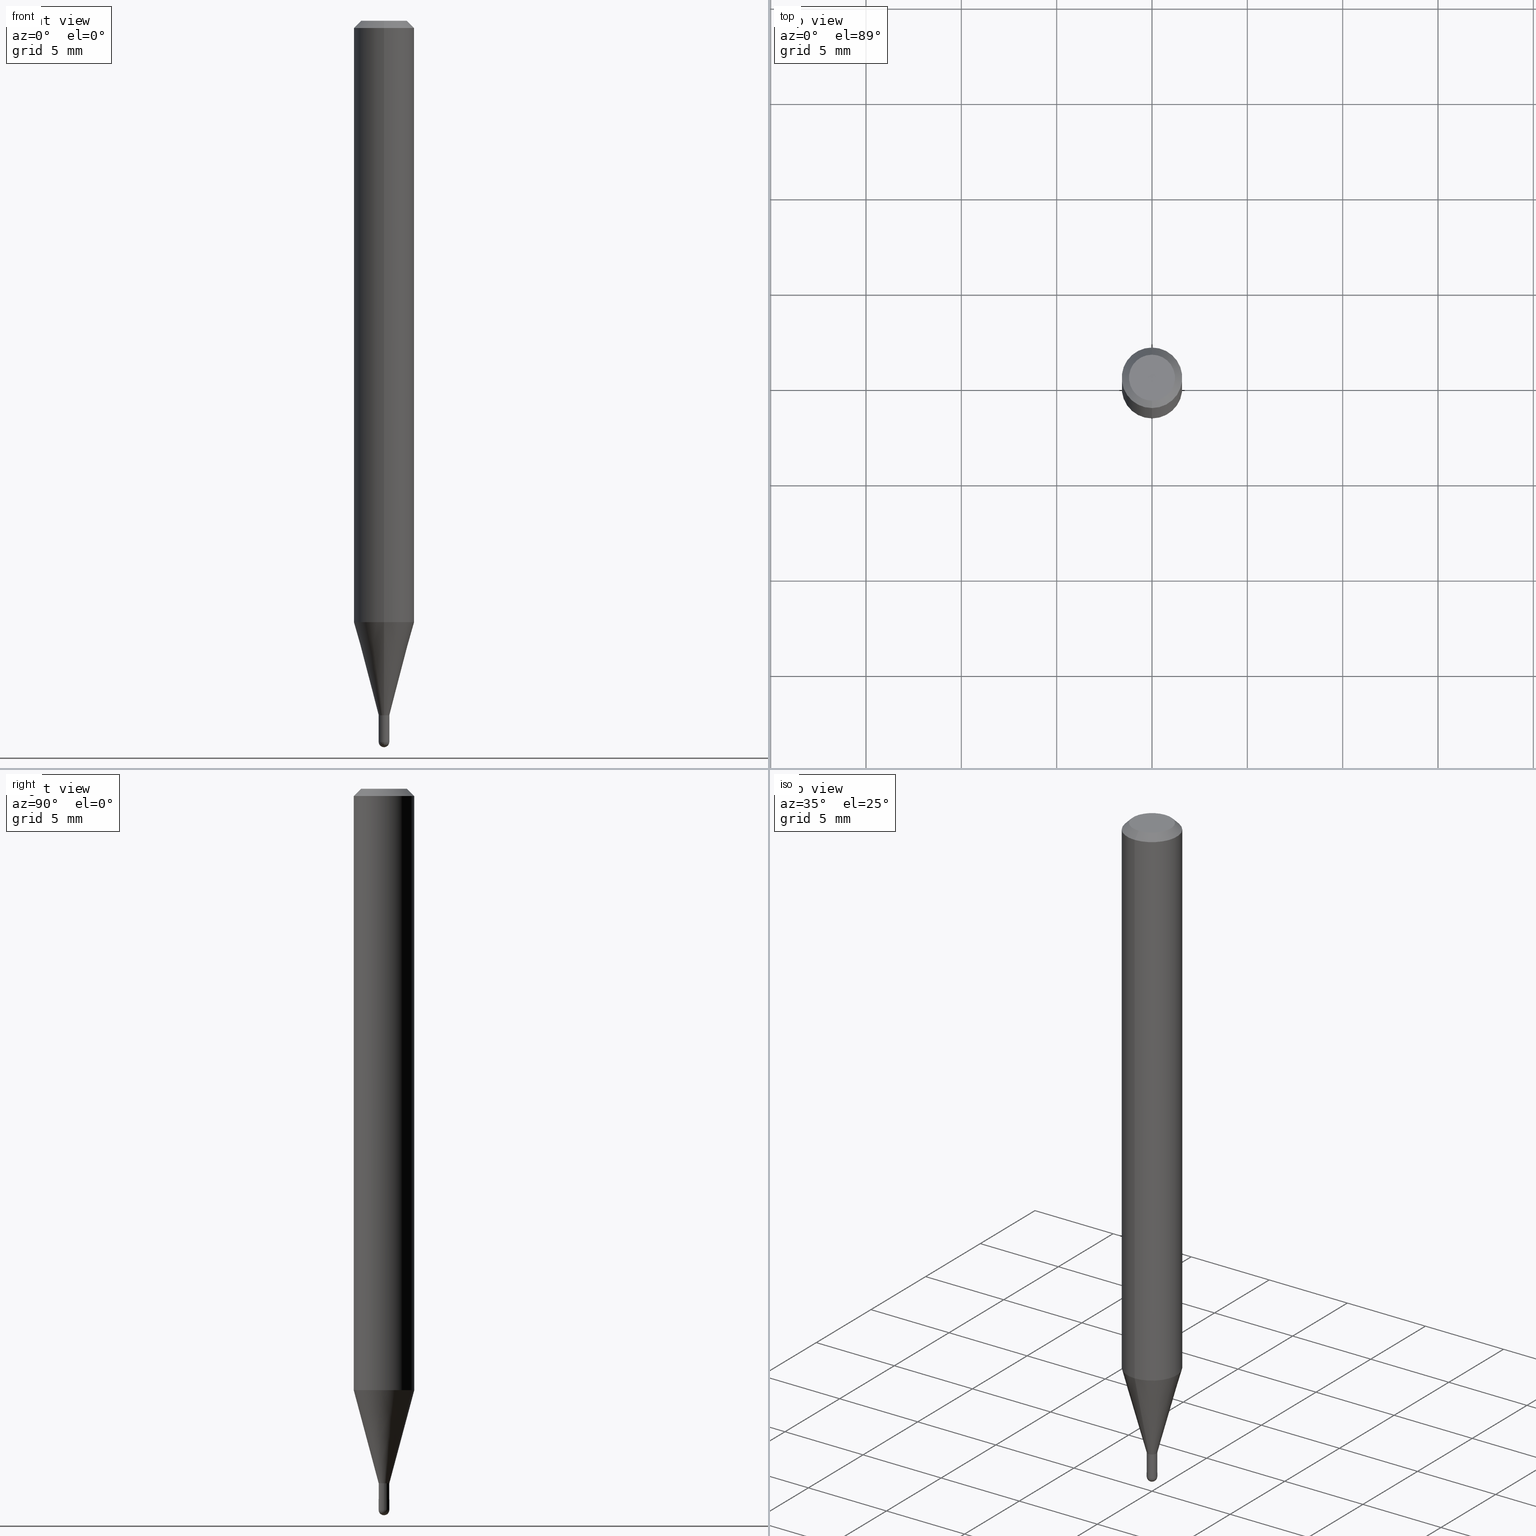
[diagram: canonical four-view strip — front | top / right | iso, engineering-drawing reading convention]
A machine part, canonical four-view strip (front | top / right | iso — engineering-drawing reading convention). The complete STEP part file that produces these views, byte-faithful:
ISO-10303-21;
HEADER;
FILE_DESCRIPTION (( 'STEP AP203' ),
    '1' );
FILE_NAME ('04400.STEP',
    '2024-03-08T19:11:10',
    ( '' ),
    ( '' ),
    'SwSTEP 2.0',
    'SolidWorks 2023',
    '' );
FILE_SCHEMA (( 'CONFIG_CONTROL_DESIGN' ));
ENDSEC;

DATA;
#1 = DIRECTION ( 'NONE',  ( -6.982962677686265922E-15, -1.000000000000000000, 0.000000000000000000 ) ) ;
#2 = ORIENTED_EDGE ( 'NONE', *, *, #118, .T. ) ;
#3 = AXIS2_PLACEMENT_3D ( 'NONE', #479, #172, #8 ) ;
#4 = ADVANCED_FACE ( 'NONE', ( #236 ), #231, .T. ) ;
#5 = AXIS2_PLACEMENT_3D ( 'NONE', #20, #144, #105 ) ;
#6 = LINE ( 'NONE', #406, #341 ) ;
#7 = EDGE_LOOP ( 'NONE', ( #359, #410, #324, #482 ) ) ;
#8 = DIRECTION ( 'NONE',  ( -6.982962677686265133E-15, -1.000000000000000000, 0.000000000000000000 ) ) ;
#9 = ORIENTED_EDGE ( 'NONE', *, *, #334, .F. ) ;
#10 = ORIENTED_EDGE ( 'NONE', *, *, #323, .T. ) ;
#11 = DIRECTION ( 'NONE',  ( -2.445461482890761965E-29, 3.491491826217505762E-15, 1.000000000000000000 ) ) ;
#12 = VERTEX_POINT ( 'NONE', #372 ) ;
#13 = EDGE_CURVE ( 'NONE', #12, #60, #94, .T. ) ;
#14 = ORIENTED_EDGE ( 'NONE', *, *, #27, .T. ) ;
#15 = DIRECTION ( 'NONE',  ( -6.982962677686265922E-15, -1.000000000000000000, 3.491491826217505762E-15 ) ) ;
#16 = DIRECTION ( 'NONE',  ( -2.445461482890761965E-29, 3.491491826217505762E-15, 1.000000000000000000 ) ) ;
#17 = ORIENTED_EDGE ( 'NONE', *, *, #124, .F. ) ;
#18 = DIRECTION ( 'NONE',  ( -6.982962677686265922E-15, -1.000000000000000000, 0.000000000000000000 ) ) ;
#19 = VERTEX_POINT ( 'NONE', #498 ) ;
#20 = CARTESIAN_POINT ( 'NONE',  ( 3.641303052409669428E-29, -5.198815713537445098E-15, -1.489000000000000323 ) ) ;
#21 = DIRECTION ( 'NONE',  ( 2.438088387897960049E-29, -3.491481338843145188E-15, -1.000000000000000000 ) ) ;
#22 = CARTESIAN_POINT ( 'NONE',  ( 7.681258945458397305E-17, 0.01099999999999499121, -1.434000000000000163 ) ) ;
#23 = PERSON_AND_ORGANIZATION_ROLE ( 'creator' ) ;
#24 = APPROVAL ( #26, 'UNSPECIFIED' ) ;
#25 = APPROVAL_PERSON_ORGANIZATION ( #462, #29, #305 ) ;
#26 = APPROVAL_STATUS ( 'not_yet_approved' ) ;
#27 = EDGE_CURVE ( 'NONE', #274, #248, #282, .T. ) ;
#28 = DATE_AND_TIME ( #339, #259 ) ;
#29 = APPROVAL ( #69, 'UNSPECIFIED' ) ;
#30 = APPROVAL_STATUS ( 'not_yet_approved' ) ;
#31 = DIRECTION ( 'NONE',  ( -6.982962677686265922E-15, -1.000000000000000000, 0.000000000000000000 ) ) ;
#32 = AXIS2_PLACEMENT_3D ( 'NONE', #473, #474, #230 ) ;
#33 = ORIENTED_EDGE ( 'NONE', *, *, #167, .T. ) ;
#34 = DIRECTION ( 'NONE',  ( -2.445461482890761965E-29, 3.491491826217505762E-15, 1.000000000000000000 ) ) ;
#35 = AXIS2_PLACEMENT_3D ( 'NONE', #22, #21, #415 ) ;
#36 = DIRECTION ( 'NONE',  ( 1.000000000000000000, -6.982962677686245411E-15, 0.000000000000000000 ) ) ;
#37 = CARTESIAN_POINT ( 'NONE',  ( 3.641303052409669428E-29, -5.198815713537445098E-15, -1.489000000000000323 ) ) ;
#38 = CARTESIAN_POINT ( 'NONE',  ( 3.506791766465352744E-29, -5.006799278795903380E-15, -1.434000000000000163 ) ) ;
#39 = LOCAL_TIME ( 14, 11, 10.00000000000000000, #262 ) ;
#40 = CIRCLE ( 'NONE', #204, 0.06250000000000000000 ) ;
#41 = DIRECTION ( 'NONE',  ( -2.445461482890762245E-29, 3.491491826217505762E-15, 1.000000000000000000 ) ) ;
#42 = CARTESIAN_POINT ( 'NONE',  ( 0.000000000000000000, 0.000000000000000000, 0.000000000000000000 ) ) ;
#43 = DIRECTION ( 'NONE',  ( -6.982962677686265922E-15, -1.000000000000000000, 0.000000000000000000 ) ) ;
#44 = DIRECTION ( 'NONE',  ( -4.851104656540964275E-15, -0.7071067811865500152, -0.7071067811865450192 ) ) ;
#45 = CC_DESIGN_PERSON_AND_ORGANIZATION_ASSIGNMENT ( #376, #23, ( #432 ) ) ;
#46 = DIRECTION ( 'NONE',  ( -6.982962677686265922E-15, -1.000000000000000000, 0.000000000000000000 ) ) ;
#47 = CIRCLE ( 'NONE', #3, 0.01099999999999998201 ) ;
#48 = CIRCLE ( 'NONE', #336, 0.01099999999999999936 ) ;
#49 = DIRECTION ( 'NONE',  ( -6.982962677686265922E-15, -1.000000000000000000, 4.370956789862821150E-15 ) ) ;
#50 = ORIENTED_EDGE ( 'NONE', *, *, #263, .F. ) ;
#51 = EDGE_CURVE ( 'NONE', #165, #355, #445, .T. ) ;
#52 = SPHERICAL_SURFACE ( 'NONE', #213, 0.01099999999999998201 ) ;
#53 = ORIENTED_EDGE ( 'NONE', *, *, #118, .F. ) ;
#54 = LOCAL_TIME ( 14, 11, 10.00000000000000000, #496 ) ;
#55 = LINE ( 'NONE', #444, #183 ) ;
#56 = ORIENTED_EDGE ( 'NONE', *, *, #285, .F. ) ;
#57 = DIRECTION ( 'NONE',  ( -2.445468806185136877E-29, 3.491481338843145188E-15, 1.000000000000000000 ) ) ;
#58 = DATE_TIME_ROLE ( 'classification_date' ) ;
#59 = CC_DESIGN_PERSON_AND_ORGANIZATION_ASSIGNMENT ( #65, #379, ( #240 ) ) ;
#60 = VERTEX_POINT ( 'NONE', #424 ) ;
#61 = PERSON_AND_ORGANIZATION_ROLE ( 'design_supplier' ) ;
#62 = AXIS2_PLACEMENT_3D ( 'NONE', #467, #352, #389 ) ;
#63 = DESIGN_CONTEXT ( 'detailed design', #233, 'design' ) ;
#64 = AXIS2_PLACEMENT_3D ( 'NONE', #466, #510, #31 ) ;
#65 = PERSON_AND_ORGANIZATION ( #481, #177 ) ;
#66 = CARTESIAN_POINT ( 'NONE',  ( 0.000000000000000000, 0.000000000000000000, 0.000000000000000000 ) ) ;
#67 = CC_DESIGN_PERSON_AND_ORGANIZATION_ASSIGNMENT ( #422, #113, ( #453 ) ) ;
#68 = ORIENTED_EDGE ( 'NONE', *, *, #321, .F. ) ;
#69 = APPROVAL_STATUS ( 'not_yet_approved' ) ;
#70 = CARTESIAN_POINT ( 'NONE',  ( -7.681258945451523121E-17, -0.01100000000000520353, -1.434000000000000163 ) ) ;
#71 = CONICAL_SURFACE ( 'NONE', #427, 0.01049999999999999892, 0.7853981633969275844 ) ;
#72 = LOCAL_TIME ( 14, 11, 10.00000000000000000, #298 ) ;
#73 = AXIS2_PLACEMENT_3D ( 'NONE', #471, #390, #155 ) ;
#74 = ORIENTED_EDGE ( 'NONE', *, *, #456, .T. ) ;
#75 = DIRECTION ( 'NONE',  ( -2.445461482890762245E-29, 3.491491826217505762E-15, 1.000000000000000000 ) ) ;
#76 = DIRECTION ( 'NONE',  ( -6.982962677686265922E-15, -1.000000000000000000, 3.491491826217505762E-15 ) ) ;
#77 = CARTESIAN_POINT ( 'NONE',  ( -4.287811248607203282E-16, -0.06250000000000005551, -0.01499999999999984852 ) ) ;
#78 = CYLINDRICAL_SURFACE ( 'NONE', #83, 0.06250000000000000000 ) ;
#79 = FACE_OUTER_BOUND ( 'NONE', #365, .T. ) ;
#80 = DIRECTION ( 'NONE',  ( 2.445461482890762245E-29, -3.491491826217505762E-15, -1.000000000000000000 ) ) ;
#81 = DIRECTION ( 'NONE',  ( -2.445461482890762245E-29, 3.491491826217505762E-15, 1.000000000000000000 ) ) ;
#82 = VECTOR ( 'NONE', #166, 39.37007874015748143 ) ;
#83 = AXIS2_PLACEMENT_3D ( 'NONE', #188, #340, #463 ) ;
#84 = SPHERICAL_SURFACE ( 'NONE', #32, 0.01099999999999998201 ) ;
#85 = EDGE_CURVE ( 'NONE', #91, #348, #420, .T. ) ;
#86 = FACE_OUTER_BOUND ( 'NONE', #96, .T. ) ;
#87 = ADVANCED_FACE ( 'NONE', ( #302 ), #109, .F. ) ;
#88 = EDGE_LOOP ( 'NONE', ( #478, #244, #504, #288 ) ) ;
#89 = FACE_OUTER_BOUND ( 'NONE', #484, .T. ) ;
#90 = ORIENTED_EDGE ( 'NONE', *, *, #407, .T. ) ;
#91 = VERTEX_POINT ( 'NONE', #70 ) ;
#92 = CC_DESIGN_APPROVAL ( #29, ( #240 ) ) ;
#93 = EDGE_CURVE ( 'NONE', #248, #274, #297, .T. ) ;
#94 = CIRCLE ( 'NONE', #5, 0.01099999999999999936 ) ;
#95 = CARTESIAN_POINT ( 'NONE',  ( 0.000000000000000000, 0.000000000000000000, 0.000000000000000000 ) ) ;
#96 = EDGE_LOOP ( 'NONE', ( #470, #116, #90, #53 ) ) ;
#97 = FACE_OUTER_BOUND ( 'NONE', #143, .T. ) ;
#98 = DIRECTION ( 'NONE',  ( -4.937700262161976356E-15, -0.7071067811861768693, 0.7071067811869181652 ) ) ;
#99 = ORIENTED_EDGE ( 'NONE', *, *, #403, .T. ) ;
#100 = ORIENTED_EDGE ( 'NONE', *, *, #85, .F. ) ;
#101 = DIRECTION ( 'NONE',  ( -2.445468806185136597E-29, 3.491481338843145583E-15, 1.000000000000000000 ) ) ;
#102 = DIRECTION ( 'NONE',  ( 6.982962677686265922E-15, 1.000000000000000000, -3.483106191921935554E-15 ) ) ;
#103 = AXIS2_PLACEMENT_3D ( 'NONE', #397, #161, #46 ) ;
#104 = ADVANCED_FACE ( 'NONE', ( #374 ), #329, .F. ) ;
#105 = DIRECTION ( 'NONE',  ( 1.000000000000000000, -6.982962677686245411E-15, 0.000000000000000000 ) ) ;
#106 = EDGE_CURVE ( 'NONE', #460, #346, #367, .T. ) ;
#107 = VECTOR ( 'NONE', #308, 39.37007874015748143 ) ;
#108 = DIRECTION ( 'NONE',  ( 0.000000000000000000, 0.000000000000000000, 1.000000000000000000 ) ) ;
#109 = CYLINDRICAL_SURFACE ( 'NONE', #268, 0.01099999999999992477 ) ;
#110 = AXIS2_PLACEMENT_3D ( 'NONE', #296, #454, #417 ) ;
#111 = CARTESIAN_POINT ( 'NONE',  ( -4.364351673553916201E-16, -0.06250000000000000000, 2.182182391385941101E-16 ) ) ;
#112 = DIRECTION ( 'NONE',  ( 1.000000000000000000, -6.982962677686265922E-15, 4.876176775795936353E-29 ) ) ;
#113 = PERSON_AND_ORGANIZATION_ROLE ( 'design_owner' ) ;
#114 = DIRECTION ( 'NONE',  ( -6.982962677686265922E-15, -1.000000000000000000, 3.491491826217505762E-15 ) ) ;
#115 = DATE_AND_TIME ( #375, #72 ) ;
#116 = ORIENTED_EDGE ( 'NONE', *, *, #263, .T. ) ;
#117 = DIRECTION ( 'NONE',  ( -6.982962677686265922E-15, -1.000000000000000000, 0.000000000000000000 ) ) ;
#118 = EDGE_CURVE ( 'NONE', #499, #222, #185, .T. ) ;
#119 = CARTESIAN_POINT ( 'NONE',  ( 3.506791766465353865E-29, -5.006799278795904169E-15, -1.434000000000000385 ) ) ;
#120 = FACE_OUTER_BOUND ( 'NONE', #7, .T. ) ;
#121 = LINE ( 'NONE', #111, #328 ) ;
#122 = DIRECTION ( 'NONE',  ( 6.982962677686265922E-15, 1.000000000000000000, -3.483106191921935554E-15 ) ) ;
#123 = ORIENTED_EDGE ( 'NONE', *, *, #124, .T. ) ;
#124 = EDGE_CURVE ( 'NONE', #429, #200, #179, .T. ) ;
#125 = DIRECTION ( 'NONE',  ( -6.982962677686265922E-15, -1.000000000000000000, 0.000000000000000000 ) ) ;
#126 = AXIS2_PLACEMENT_3D ( 'NONE', #119, #434, #117 ) ;
#127 = EDGE_LOOP ( 'NONE', ( #9, #99, #377, #220 ) ) ;
#128 = CARTESIAN_POINT ( 'NONE',  ( 1.601770812881372317E-45, -2.286917925216366942E-31, -6.549973590211409357E-17 ) ) ;
#129 = DIRECTION ( 'NONE',  ( -2.445461482890762245E-29, 3.491491826217505762E-15, 1.000000000000000000 ) ) ;
#130 = ORIENTED_EDGE ( 'NONE', *, *, #93, .T. ) ;
#131 = DIRECTION ( 'NONE',  ( -6.982962677686265922E-15, -1.000000000000000000, 3.491491826217505762E-15 ) ) ;
#132 = ADVANCED_FACE ( 'NONE', ( #97 ), #249, .T. ) ;
#133 = EDGE_LOOP ( 'NONE', ( #123, #489, #371, #400 ) ) ;
#134 = ORIENTED_EDGE ( 'NONE', *, *, #276, .T. ) ;
#135 = FACE_OUTER_BOUND ( 'NONE', #401, .T. ) ;
#136 = ORIENTED_EDGE ( 'NONE', *, *, #106, .T. ) ;
#137 = AXIS2_PLACEMENT_3D ( 'NONE', #128, #205, #290 ) ;
#138 = AXIS2_PLACEMENT_3D ( 'NONE', #360, #277, #206 ) ;
#139 = AXIS2_PLACEMENT_3D ( 'NONE', #344, #81, #43 ) ;
#140 = CARTESIAN_POINT ( 'NONE',  ( 4.440892098500625669E-16, 0.06250000000000000000, -2.182182391385941101E-16 ) ) ;
#141 = CARTESIAN_POINT ( 'NONE',  ( 3.640362369491571484E-29, -5.200162825016506087E-15, -1.489000000000000101 ) ) ;
#142 = EDGE_CURVE ( 'NONE', #60, #278, #242, .T. ) ;
#143 = EDGE_LOOP ( 'NONE', ( #154, #136, #217, #191, #169 ) ) ;
#144 = DIRECTION ( 'NONE',  ( -2.445468806185136597E-29, 3.491481338843145583E-15, 1.000000000000000000 ) ) ;
#145 = VECTOR ( 'NONE', #44, 39.37007874015748143 ) ;
#146 = CALENDAR_DATE ( 2024, 8, 3 ) ;
#147 = DIRECTION ( 'NONE',  ( 1.000000000000000000, 0.000000000000000000, 0.000000000000000000 ) ) ;
#148 = EDGE_CURVE ( 'NONE', #91, #222, #353, .T. ) ;
#149 = EDGE_LOOP ( 'NONE', ( #14, #130 ) ) ;
#150 = APPROVAL_ROLE ( '' ) ;
#151 = CARTESIAN_POINT ( 'NONE',  ( 0.000000000000000000, 0.000000000000000000, 0.000000000000000000 ) ) ;
#152 = APPLICATION_PROTOCOL_DEFINITION ( 'international standard', 'config_control_design', 1994, #233 ) ;
#153 = CALENDAR_DATE ( 2024, 8, 3 ) ;
#154 = ORIENTED_EDGE ( 'NONE', *, *, #394, .T. ) ;
#155 = DIRECTION ( 'NONE',  ( -6.982962677686265922E-15, -1.000000000000000000, 4.370956789862821150E-15 ) ) ;
#156 = ADVANCED_FACE ( 'NONE', ( #79 ), #351, .T. ) ;
#157 = CARTESIAN_POINT ( 'NONE',  ( 3.840629472727447874E-16, 0.04749999999999999362, -2.313455976474456035E-16 ) ) ;
#158 = DIMENSIONAL_EXPONENTS ( 1.000000000000000000, 0.000000000000000000, 0.000000000000000000, 0.000000000000000000, 0.000000000000000000, 0.000000000000000000, 0.000000000000000000 ) ;
#159 = DIRECTION ( 'NONE',  ( 7.105427357601001070E-15, 1.000000000000000000, 0.000000000000000000 ) ) ;
#160 = CC_DESIGN_APPROVAL ( #464, ( #432 ) ) ;
#161 = DIRECTION ( 'NONE',  ( -2.445461482890762245E-29, 3.491491826217505762E-15, 1.000000000000000000 ) ) ;
#162 = CC_DESIGN_DATE_AND_TIME_ASSIGNMENT ( #307, #58, ( #443 ) ) ;
#163 = DIRECTION ( 'NONE',  ( -2.445461482890762245E-29, 3.491491826217505762E-15, 1.000000000000000000 ) ) ;
#164 = CARTESIAN_POINT ( 'NONE',  ( 7.815970093364746375E-17, 0.01099999999999519071, -1.434000000000000163 ) ) ;
#165 = VERTEX_POINT ( 'NONE', #414 ) ;
#166 = DIRECTION ( 'NONE',  ( -2.445461482890761965E-29, 3.491491826217505762E-15, 1.000000000000000000 ) ) ;
#167 = EDGE_CURVE ( 'NONE', #239, #19, #40, .T. ) ;
#168 = VERTEX_POINT ( 'NONE', #256 ) ;
#169 = ORIENTED_EDGE ( 'NONE', *, *, #440, .T. ) ;
#170 = LENGTH_MEASURE_WITH_UNIT ( LENGTH_MEASURE( 0.02539999999999999897 ), #364 );
#171 = AXIS2_PLACEMENT_3D ( 'NONE', #215, #446, #245 ) ;
#172 = DIRECTION ( 'NONE',  ( -1.000000000000000000, 6.982962677686265922E-15, -4.883557194083112340E-29 ) ) ;
#173 = EDGE_CURVE ( 'NONE', #460, #12, #48, .T. ) ;
#174 = FACE_OUTER_BOUND ( 'NONE', #226, .T. ) ;
#175 = DIRECTION ( 'NONE',  ( 2.445461482890762245E-29, -3.491491826217505762E-15, -1.000000000000000000 ) ) ;
#176 = DATE_AND_TIME ( #383, #54 ) ;
#177 = ORGANIZATION ( 'UNSPECIFIED', 'UNSPECIFIED', '' ) ;
#178 = CARTESIAN_POINT ( 'NONE',  ( 0.000000000000000000, 0.000000000000000000, 0.000000000000000000 ) ) ;
#179 = CIRCLE ( 'NONE', #110, 0.01049999999999999892 ) ;
#180 = ADVANCED_FACE ( 'NONE', ( #187 ), #311, .T. ) ;
#181 = UNCERTAINTY_MEASURE_WITH_UNIT (LENGTH_MEASURE( 1.000000000000000082E-05 ), #325, 'distance_accuracy_value', 'NONE');
#182 = PERSON_AND_ORGANIZATION ( #481, #177 ) ;
#183 = VECTOR ( 'NONE', #289, 39.37007874015748143 ) ;
#184 = COORDINATED_UNIVERSAL_TIME_OFFSET ( 5, 0, .BEHIND. ) ;
#185 = CIRCLE ( 'NONE', #413, 0.01099999999999965068 ) ;
#186 = ADVANCED_FACE ( 'NONE', ( #120 ), #78, .T. ) ;
#187 = FACE_OUTER_BOUND ( 'NONE', #284, .T. ) ;
#188 = CARTESIAN_POINT ( 'NONE',  ( 0.000000000000000000, 0.000000000000000000, 0.000000000000000000 ) ) ;
#189 = ORIENTED_EDGE ( 'NONE', *, *, #106, .F. ) ;
#190 = FACE_OUTER_BOUND ( 'NONE', #216, .T. ) ;
#191 = ORIENTED_EDGE ( 'NONE', *, *, #142, .F. ) ;
#192 = VECTOR ( 'NONE', #234, 39.37007874015748143 ) ;
#193 = LINE ( 'NONE', #164, #283 ) ;
#194 = CIRCLE ( 'NONE', #411, 0.06250000000000000000 ) ;
#195 = EDGE_CURVE ( 'NONE', #165, #239, #121, .T. ) ;
#196 = CARTESIAN_POINT ( 'NONE',  ( 4.440892098500927901E-16, 0.06249999999999566319, -1.241799383410210122 ) ) ;
#197 = DIRECTION ( 'NONE',  ( -2.445468806185136877E-29, 3.491481338843145188E-15, 1.000000000000000000 ) ) ;
#198 = CARTESIAN_POINT ( 'NONE',  ( 3.506791766465353865E-29, -5.006799278795904169E-15, -1.434000000000000385 ) ) ;
#199 = ADVANCED_FACE ( 'NONE', ( #313 ), #271, .F. ) ;
#200 = VERTEX_POINT ( 'NONE', #354 ) ;
#201 = DIRECTION ( 'NONE',  ( -2.445461482890762245E-29, 3.491491826217505762E-15, 1.000000000000000000 ) ) ;
#202 = ORIENTED_EDGE ( 'NONE', *, *, #418, .T. ) ;
#203 = VECTOR ( 'NONE', #483, 39.37007874015748143 ) ;
#204 = AXIS2_PLACEMENT_3D ( 'NONE', #408, #41, #436 ) ;
#205 = DIRECTION ( 'NONE',  ( -2.445461482890762245E-29, 3.491491826217505762E-15, 1.000000000000000000 ) ) ;
#206 = DIRECTION ( 'NONE',  ( -6.982962677686265922E-15, -1.000000000000000000, 3.483106191921935554E-15 ) ) ;
#207 = ORIENTED_EDGE ( 'NONE', *, *, #321, .T. ) ;
#208 = ADVANCED_FACE ( 'NONE', ( #431 ), #421, .T. ) ;
#209 = ORIENTED_EDGE ( 'NONE', *, *, #27, .F. ) ;
#210 = CARTESIAN_POINT ( 'NONE',  ( 3.506791766465352744E-29, -5.006799278795903380E-15, -1.434000000000000163 ) ) ;
#211 = ORIENTED_EDGE ( 'NONE', *, *, #285, .T. ) ;
#212 = CC_DESIGN_PERSON_AND_ORGANIZATION_ASSIGNMENT ( #419, #61, ( #240 ) ) ;
#213 = AXIS2_PLACEMENT_3D ( 'NONE', #141, #331, #250 ) ;
#214 = CARTESIAN_POINT ( 'NONE',  ( -0.01099999999999999936, 7.815970093361101591E-17, -5.410828599280396199E-31 ) ) ;
#215 = CARTESIAN_POINT ( 'NONE',  ( 3.641303052409669428E-29, -5.198815713537445098E-15, -1.489000000000000323 ) ) ;
#216 = EDGE_LOOP ( 'NONE', ( #487, #211, #33, #362 ) ) ;
#217 = ORIENTED_EDGE ( 'NONE', *, *, #323, .F. ) ;
#218 = AXIS2_PLACEMENT_3D ( 'NONE', #38, #129, #125 ) ;
#219 = PERSON_AND_ORGANIZATION ( #481, #177 ) ;
#220 = ORIENTED_EDGE ( 'NONE', *, *, #394, .F. ) ;
#221 = ORIENTED_EDGE ( 'NONE', *, *, #173, .T. ) ;
#222 = VERTEX_POINT ( 'NONE', #310 ) ;
#223 = AXIS2_PLACEMENT_3D ( 'NONE', #210, #238, #493 ) ;
#224 = CARTESIAN_POINT ( 'NONE',  ( 3.506802268069485929E-29, -5.006784239901070239E-15, -1.434000000000000163 ) ) ;
#225 = ORIENTED_EDGE ( 'NONE', *, *, #416, .F. ) ;
#226 = EDGE_LOOP ( 'NONE', ( #189, #221, #442, #326, #366 ) ) ;
#227 = ADVANCED_FACE ( 'NONE', ( #430 ), #314, .F. ) ;
#228 = LINE ( 'NONE', #317, #192 ) ;
#229 = CIRCLE ( 'NONE', #138, 0.06250000000000000000 ) ;
#230 = DIRECTION ( 'NONE',  ( -6.982962677686265922E-15, -1.000000000000000000, 0.000000000000000000 ) ) ;
#231 = CONICAL_SURFACE ( 'NONE', #358, 0.06250000000000000000, 0.7853981633974483900 ) ;
#232 = CARTESIAN_POINT ( 'NONE',  ( 0.01099999999999999936, -5.083596829355619552E-15, -1.434000000000000163 ) ) ;
#233 = APPLICATION_CONTEXT ( 'configuration controlled 3d designs of mechanical parts and assemblies' ) ;
#234 = DIRECTION ( 'NONE',  ( -1.807323732225379838E-15, -0.2588190451025252914, 0.9659258262890670910 ) ) ;
#235 = ADVANCED_FACE ( 'NONE', ( #312 ), #84, .T. ) ;
#236 = FACE_OUTER_BOUND ( 'NONE', #251, .T. ) ;
#237 = ORIENTED_EDGE ( 'NONE', *, *, #85, .T. ) ;
#238 = DIRECTION ( 'NONE',  ( -2.445461482890762245E-29, 3.491491826217505762E-15, 1.000000000000000000 ) ) ;
#239 = VERTEX_POINT ( 'NONE', #437 ) ;
#240 = PRODUCT_DEFINITION_FORMATION_WITH_SPECIFIED_SOURCE ( 'ANY', '', #453, .NOT_KNOWN. ) ;
#241 = ORIENTED_EDGE ( 'NONE', *, *, #254, .F. ) ;
#242 = LINE ( 'NONE', #319, #476 ) ;
#243 = CARTESIAN_POINT ( 'NONE',  ( 3.506791766465352744E-29, -5.006799278795903380E-15, -1.434000000000000163 ) ) ;
#244 = ORIENTED_EDGE ( 'NONE', *, *, #334, .T. ) ;
#245 = DIRECTION ( 'NONE',  ( 1.000000000000000000, -6.982962677686245411E-15, 0.000000000000000000 ) ) ;
#246 = CC_DESIGN_PERSON_AND_ORGANIZATION_ASSIGNMENT ( #182, #501, ( #443 ) ) ;
#247 = EDGE_LOOP ( 'NONE', ( #10, #134 ) ) ;
#248 = VERTEX_POINT ( 'NONE', #267 ) ;
#249 = CYLINDRICAL_SURFACE ( 'NONE', #306, 0.01099999999999999936 ) ;
#250 = DIRECTION ( 'NONE',  ( -6.982962677686265922E-15, -1.000000000000000000, 0.000000000000000000 ) ) ;
#251 = EDGE_LOOP ( 'NONE', ( #56, #209, #74, #258 ) ) ;
#252 = CC_DESIGN_APPROVAL ( #24, ( #443 ) ) ;
#253 = PLANE ( 'NONE',  #335 ) ;
#254 = EDGE_CURVE ( 'NONE', #348, #91, #497, .T. ) ;
#255 = SECURITY_CLASSIFICATION_LEVEL ( 'unclassified' ) ;
#256 = CARTESIAN_POINT ( 'NONE',  ( 7.815970093364734049E-17, 0.01099999999999479172, -1.489000000000000323 ) ) ;
#257 = APPROVAL_DATE_TIME ( #342, #29 ) ;
#258 = ORIENTED_EDGE ( 'NONE', *, *, #381, .T. ) ;
#259 = LOCAL_TIME ( 14, 11, 10.00000000000000000, #457 ) ;
#260 = MECHANICAL_CONTEXT ( 'NONE', #293, 'mechanical' ) ;
#261 = AXIS2_PLACEMENT_3D ( 'NONE', #385, #386, #512 ) ;
#262 = COORDINATED_UNIVERSAL_TIME_OFFSET ( 5, 0, .BEHIND. ) ;
#263 = EDGE_CURVE ( 'NONE', #200, #429, #509, .T. ) ;
#264 = APPLICATION_PROTOCOL_DEFINITION ( 'international standard', 'config_control_design', 1994, #293 ) ;
#265 = DIRECTION ( 'NONE',  ( -2.445468806185136597E-29, 3.491481338843145583E-15, 1.000000000000000000 ) ) ;
#266 = AXIS2_PLACEMENT_3D ( 'NONE', #507, #275, #159 ) ;
#267 = CARTESIAN_POINT ( 'NONE',  ( -3.773273898774340269E-16, -0.04749999999999999362, 1.003461258432174163E-16 ) ) ;
#268 = AXIS2_PLACEMENT_3D ( 'NONE', #66, #384, #114 ) ;
#269 = CARTESIAN_POINT ( 'NONE',  ( 3.668192224336159377E-31, -5.237237739326281594E-17, -0.01500000000000006710 ) ) ;
#270 = DIRECTION ( 'NONE',  ( 1.000000000000000000, -6.982962677686245411E-15, 0.000000000000000000 ) ) ;
#271 = PLANE ( 'NONE',  #261 ) ;
#272 = AXIS2_PLACEMENT_3D ( 'NONE', #95, #330, #441 ) ;
#273 = DIRECTION ( 'NONE',  ( -2.445461482890762245E-29, 3.491491826217505762E-15, 1.000000000000000000 ) ) ;
#274 = VERTEX_POINT ( 'NONE', #157 ) ;
#275 = DIRECTION ( 'NONE',  ( 1.000000000000000000, -7.105427357601001070E-15, 4.926315508542082329E-29 ) ) ;
#276 = EDGE_CURVE ( 'NONE', #346, #278, #387, .T. ) ;
#277 = DIRECTION ( 'NONE',  ( -2.445461482890762245E-29, 3.491491826217505762E-15, 1.000000000000000000 ) ) ;
#278 = VERTEX_POINT ( 'NONE', #232 ) ;
#279 = ORIENTED_EDGE ( 'NONE', *, *, #472, .T. ) ;
#280 = VERTEX_POINT ( 'NONE', #393 ) ;
#281 = CARTESIAN_POINT ( 'NONE',  ( -7.332110811567072031E-17, -0.01050000000000500706, -1.434000000000000385 ) ) ;
#282 = CIRCLE ( 'NONE', #469, 0.04749999999999999362 ) ;
#283 = VECTOR ( 'NONE', #349, 39.37007874015748854 ) ;
#284 = EDGE_LOOP ( 'NONE', ( #237, #396, #485, #68 ) ) ;
#285 = EDGE_CURVE ( 'NONE', #248, #239, #395, .T. ) ;
#286 = ORIENTED_EDGE ( 'NONE', *, *, #254, .T. ) ;
#287 = CARTESIAN_POINT ( 'NONE',  ( 3.641303052409669428E-29, -5.198815713537445098E-15, -1.489000000000000323 ) ) ;
#288 = ORIENTED_EDGE ( 'NONE', *, *, #13, .F. ) ;
#289 = DIRECTION ( 'NONE',  ( -2.445461482890761965E-29, 3.491491826217505762E-15, 1.000000000000000000 ) ) ;
#290 = DIRECTION ( 'NONE',  ( -6.982962677686266711E-15, -1.000000000000000000, 3.491491826217505762E-15 ) ) ;
#291 = DIRECTION ( 'NONE',  ( 1.000000000000000000, -6.982962677686245411E-15, 0.000000000000000000 ) ) ;
#292 = ORIENTED_EDGE ( 'NONE', *, *, #472, .F. ) ;
#293 = APPLICATION_CONTEXT ( 'configuration controlled 3d designs of mechanical parts and assemblies' ) ;
#294 = AXIS2_PLACEMENT_3D ( 'NONE', #287, #101, #291 ) ;
#295 = APPROVAL_PERSON_ORGANIZATION ( #219, #24, #150 ) ;
#296 = CARTESIAN_POINT ( 'NONE',  ( 3.506791766465353865E-29, -5.006799278795904169E-15, -1.434000000000000385 ) ) ;
#297 = CIRCLE ( 'NONE', #137, 0.04749999999999999362 ) ;
#298 = COORDINATED_UNIVERSAL_TIME_OFFSET ( 5, 0, .BEHIND. ) ;
#299 = ADVANCED_BREP_SHAPE_REPRESENTATION ( '04400', ( #380, #382, #468 ), #398 ) ;
#300 = ADVANCED_FACE ( 'NONE', ( #190 ), #475, .T. ) ;
#301 = DATE_TIME_ROLE ( 'creation_date' ) ;
#302 = FACE_OUTER_BOUND ( 'NONE', #465, .T. ) ;
#303 = AXIS2_PLACEMENT_3D ( 'NONE', #477, #347, #270 ) ;
#304 = ADVANCED_FACE ( 'NONE', ( #86 ), #71, .T. ) ;
#305 = APPROVAL_ROLE ( '' ) ;
#306 = AXIS2_PLACEMENT_3D ( 'NONE', #151, #458, #112 ) ;
#307 = DATE_AND_TIME ( #153, #39 ) ;
#308 = DIRECTION ( 'NONE',  ( 5.024295867785445738E-15, 0.7071067811861817543, 0.7071067811869132802 ) ) ;
#309 = LOCAL_TIME ( 14, 11, 10.00000000000000000, #184 ) ;
#310 = CARTESIAN_POINT ( 'NONE',  ( -7.681258945451169366E-17, -0.01100000000000469179, -1.433500000000000218 ) ) ;
#311 = CONICAL_SURFACE ( 'NONE', #139, 0.01100000000000019712, 0.2617993877991576235 ) ;
#312 = FACE_OUTER_BOUND ( 'NONE', #127, .T. ) ;
#313 = FACE_OUTER_BOUND ( 'NONE', #149, .T. ) ;
#314 = CYLINDRICAL_SURFACE ( 'NONE', #502, 0.01099999999999992477 ) ;
#315 = EDGE_CURVE ( 'NONE', #348, #355, #193, .T. ) ;
#316 = CIRCLE ( 'NONE', #303, 0.01099999999999999936 ) ;
#317 = CARTESIAN_POINT ( 'NONE',  ( -7.681258945451523121E-17, -0.01100000000000520353, -1.434000000000000163 ) ) ;
#318 = VECTOR ( 'NONE', #57, 39.37007874015748143 ) ;
#319 = CARTESIAN_POINT ( 'NONE',  ( 0.01099999999999999936, -7.681258945454891804E-17, 5.363794453375529652E-31 ) ) ;
#320 = LINE ( 'NONE', #140, #82 ) ;
#321 = EDGE_CURVE ( 'NONE', #91, #165, #228, .T. ) ;
#322 = CARTESIAN_POINT ( 'NONE',  ( 4.364351673553919652E-16, 0.06249999999999995143, -0.01500000000000028394 ) ) ;
#323 = EDGE_CURVE ( 'NONE', #278, #346, #316, .T. ) ;
#324 = ORIENTED_EDGE ( 'NONE', *, *, #195, .T. ) ;
#325 =( CONVERSION_BASED_UNIT ( 'INCH', #170 ) LENGTH_UNIT ( ) NAMED_UNIT ( #158 ) );
#326 = ORIENTED_EDGE ( 'NONE', *, *, #142, .T. ) ;
#327 = CIRCLE ( 'NONE', #266, 0.01099999999999998201 ) ;
#328 = VECTOR ( 'NONE', #34, 39.37007874015748143 ) ;
#329 = PLANE ( 'NONE',  #35 ) ;
#330 = DIRECTION ( 'NONE',  ( -2.445468806185136597E-29, 3.491481338843145583E-15, 1.000000000000000000 ) ) ;
#331 = DIRECTION ( 'NONE',  ( 1.000000000000000000, -6.982962677686265922E-15, 4.883557194083112901E-29 ) ) ;
#332 = CARTESIAN_POINT ( 'NONE',  ( 3.505569035723908321E-29, -5.005053532882795644E-15, -1.433500000000000218 ) ) ;
#333 = PERSON_AND_ORGANIZATION ( #481, #177 ) ;
#334 = EDGE_CURVE ( 'NONE', #280, #168, #327, .T. ) ;
#335 = AXIS2_PLACEMENT_3D ( 'NONE', #243, #16, #131 ) ;
#336 = AXIS2_PLACEMENT_3D ( 'NONE', #37, #265, #425 ) ;
#337 = APPROVAL_DATE_TIME ( #176, #464 ) ;
#338 = CC_DESIGN_DATE_AND_TIME_ASSIGNMENT ( #28, #301, ( #432 ) ) ;
#339 = CALENDAR_DATE ( 2024, 8, 3 ) ;
#340 = DIRECTION ( 'NONE',  ( -2.445461482890762245E-29, 3.491491826217505762E-15, 1.000000000000000000 ) ) ;
#341 = VECTOR ( 'NONE', #98, 39.37007874015748143 ) ;
#342 = DATE_AND_TIME ( #146, #309 ) ;
#343 = ORIENTED_EDGE ( 'NONE', *, *, #315, .F. ) ;
#344 = CARTESIAN_POINT ( 'NONE',  ( 3.506791766465352744E-29, -5.006799278795903380E-15, -1.434000000000000163 ) ) ;
#345 = LINE ( 'NONE', #506, #107 ) ;
#346 = VERTEX_POINT ( 'NONE', #391 ) ;
#347 = DIRECTION ( 'NONE',  ( -2.445468806185136597E-29, 3.491481338843145583E-15, 1.000000000000000000 ) ) ;
#348 = VERTEX_POINT ( 'NONE', #439 ) ;
#349 = DIRECTION ( 'NONE',  ( 1.839019923739650408E-15, 0.2588190451025320082, 0.9659258262890650926 ) ) ;
#350 = EDGE_CURVE ( 'NONE', #222, #499, #459, .T. ) ;
#351 = CYLINDRICAL_SURFACE ( 'NONE', #461, 0.06250000000000000000 ) ;
#352 = DIRECTION ( 'NONE',  ( -2.445461482890762245E-29, 3.491491826217505762E-15, 1.000000000000000000 ) ) ;
#353 = LINE ( 'NONE', #402, #428 ) ;
#354 = CARTESIAN_POINT ( 'NONE',  ( 7.638334409424443837E-17, 0.01049999999999499251, -1.434000000000000385 ) ) ;
#355 = VERTEX_POINT ( 'NONE', #196 ) ;
#356 = AXIS2_PLACEMENT_3D ( 'NONE', #269, #80, #122 ) ;
#357 =( NAMED_UNIT ( * ) SI_UNIT ( $, .STERADIAN. ) SOLID_ANGLE_UNIT ( ) );
#358 = AXIS2_PLACEMENT_3D ( 'NONE', #449, #175, #102 ) ;
#359 = ORIENTED_EDGE ( 'NONE', *, *, #418, .F. ) ;
#360 = CARTESIAN_POINT ( 'NONE',  ( 3.668192224336159377E-31, -5.237237739326281594E-17, -0.01500000000000006710 ) ) ;
#361 = EDGE_CURVE ( 'NONE', #200, #499, #345, .T. ) ;
#362 = ORIENTED_EDGE ( 'NONE', *, *, #456, .F. ) ;
#363 = ORIENTED_EDGE ( 'NONE', *, *, #51, .T. ) ;
#364 =( LENGTH_UNIT ( ) NAMED_UNIT ( * ) SI_UNIT ( $, .METRE. ) );
#365 = EDGE_LOOP ( 'NONE', ( #363, #202, #451, #480 ) ) ;
#366 = ORIENTED_EDGE ( 'NONE', *, *, #276, .F. ) ;
#367 = LINE ( 'NONE', #214, #318 ) ;
#368 = CARTESIAN_POINT ( 'NONE',  ( 7.815970093364330990E-17, 0.01099999999999460958, -1.433500000000000218 ) ) ;
#369 = AXIS2_PLACEMENT_3D ( 'NONE', #224, #511, #36 ) ;
#370 = FACE_OUTER_BOUND ( 'NONE', #88, .T. ) ;
#371 = ORIENTED_EDGE ( 'NONE', *, *, #350, .F. ) ;
#372 = CARTESIAN_POINT ( 'NONE',  ( -7.681258945451244555E-17, -0.01100000000000518965, -1.489000000000000323 ) ) ;
#373 = ADVANCED_FACE ( 'NONE', ( #89 ), #392, .T. ) ;
#374 = FACE_OUTER_BOUND ( 'NONE', #247, .T. ) ;
#375 = CALENDAR_DATE ( 2024, 8, 3 ) ;
#376 = PERSON_AND_ORGANIZATION ( #481, #177 ) ;
#377 = ORIENTED_EDGE ( 'NONE', *, *, #173, .F. ) ;
#378 = PRODUCT_DEFINITION_SHAPE ( 'NONE', 'NONE',  #432 ) ;
#379 = PERSON_AND_ORGANIZATION_ROLE ( 'creator' ) ;
#380 = MANIFOLD_SOLID_BREP ( 'Body-Move/Copy2[1]', #488 ) ;
#381 = EDGE_CURVE ( 'NONE', #19, #239, #229, .T. ) ;
#382 = MANIFOLD_SOLID_BREP ( 'Body-Move/Copy2[2]', #438 ) ;
#383 = CALENDAR_DATE ( 2024, 8, 3 ) ;
#384 = DIRECTION ( 'NONE',  ( -2.445461482890762245E-29, 3.491491826217505762E-15, 1.000000000000000000 ) ) ;
#385 = CARTESIAN_POINT ( 'NONE',  ( 3.316907271900976096E-16, 0.04749999999999999362, -1.985957296963885567E-16 ) ) ;
#386 = DIRECTION ( 'NONE',  ( 2.445461482890761965E-29, -3.491491826217505762E-15, -1.000000000000000000 ) ) ;
#387 = CIRCLE ( 'NONE', #369, 0.01099999999999999936 ) ;
#388 = ADVANCED_FACE ( 'NONE', ( #174 ), #450, .T. ) ;
#389 = DIRECTION ( 'NONE',  ( -6.982962677686265922E-15, -1.000000000000000000, 0.000000000000000000 ) ) ;
#390 = DIRECTION ( 'NONE',  ( -2.445461482890762245E-29, 3.491491826217505762E-15, 1.000000000000000000 ) ) ;
#391 = CARTESIAN_POINT ( 'NONE',  ( -0.01099999999999999936, -5.024640275785647368E-15, -1.434000000000000163 ) ) ;
#392 = CONICAL_SURFACE ( 'NONE', #223, 0.01100000000000019712, 0.2617993877991576235 ) ;
#393 = CARTESIAN_POINT ( 'NONE',  ( 3.666792184900558820E-29, -5.239242675483312026E-15, -1.500000000000000222 ) ) ;
#394 = EDGE_CURVE ( 'NONE', #168, #460, #452, .T. ) ;
#395 = LINE ( 'NONE', #77, #145 ) ;
#396 = ORIENTED_EDGE ( 'NONE', *, *, #315, .T. ) ;
#397 = CARTESIAN_POINT ( 'NONE',  ( 3.505569035723908321E-29, -5.005053532882795644E-15, -1.433500000000000218 ) ) ;
#398 =( GEOMETRIC_REPRESENTATION_CONTEXT ( 3 ) GLOBAL_UNCERTAINTY_ASSIGNED_CONTEXT ( ( #181 ) ) GLOBAL_UNIT_ASSIGNED_CONTEXT ( ( #325, #448, #357 ) ) REPRESENTATION_CONTEXT ( 'NONE', 'WORKASPACE' ) );
#399 = CARTESIAN_POINT ( 'NONE',  ( 3.036772561607166084E-29, -4.335732396978686706E-15, -1.241799383410209900 ) ) ;
#400 = ORIENTED_EDGE ( 'NONE', *, *, #407, .F. ) ;
#401 = EDGE_LOOP ( 'NONE', ( #17, #50 ) ) ;
#402 = CARTESIAN_POINT ( 'NONE',  ( -7.681258945454840035E-17, -0.01099999999999992477, 3.840641008839229946E-17 ) ) ;
#403 = EDGE_CURVE ( 'NONE', #280, #12, #47, .T. ) ;
#404 = LINE ( 'NONE', #322, #203 ) ;
#405 = ORIENTED_EDGE ( 'NONE', *, *, #350, .T. ) ;
#406 = CARTESIAN_POINT ( 'NONE',  ( -7.332110811567072031E-17, -0.01050000000000500706, -1.434000000000000385 ) ) ;
#407 = EDGE_CURVE ( 'NONE', #429, #222, #6, .T. ) ;
#408 = CARTESIAN_POINT ( 'NONE',  ( 3.668192224336159377E-31, -5.237237739326281594E-17, -0.01500000000000006710 ) ) ;
#409 = CARTESIAN_POINT ( 'NONE',  ( -0.01099999999999999936, -5.024640275785647368E-15, -1.489000000000000323 ) ) ;
#410 = ORIENTED_EDGE ( 'NONE', *, *, #416, .T. ) ;
#411 = AXIS2_PLACEMENT_3D ( 'NONE', #399, #491, #49 ) ;
#412 = CC_DESIGN_SECURITY_CLASSIFICATION ( #443, ( #240 ) ) ;
#413 = AXIS2_PLACEMENT_3D ( 'NONE', #332, #495, #18 ) ;
#414 = CARTESIAN_POINT ( 'NONE',  ( -4.364351673553612983E-16, -0.06250000000000434375, -1.241799383410209678 ) ) ;
#415 = DIRECTION ( 'NONE',  ( -1.000000000000000000, 6.982962677686265922E-15, -4.876176775795935793E-29 ) ) ;
#416 = EDGE_CURVE ( 'NONE', #355, #165, #194, .T. ) ;
#417 = DIRECTION ( 'NONE',  ( -6.982962677686265922E-15, -1.000000000000000000, 0.000000000000000000 ) ) ;
#418 = EDGE_CURVE ( 'NONE', #355, #19, #320, .T. ) ;
#419 = PERSON_AND_ORGANIZATION ( #481, #177 ) ;
#420 = CIRCLE ( 'NONE', #64, 0.01100000000000019712 ) ;
#421 = CONICAL_SURFACE ( 'NONE', #62, 0.01049999999999999892, 0.7853981633969275844 ) ;
#422 = PERSON_AND_ORGANIZATION ( #481, #177 ) ;
#423 = APPROVAL_ROLE ( '' ) ;
#424 = CARTESIAN_POINT ( 'NONE',  ( 0.01099999999999999936, -5.179612566173806192E-15, -1.489000000000000323 ) ) ;
#425 = DIRECTION ( 'NONE',  ( 1.000000000000000000, -6.982962677686245411E-15, 0.000000000000000000 ) ) ;
#426 = ADVANCED_FACE ( 'NONE', ( #370 ), #52, .T. ) ;
#427 = AXIS2_PLACEMENT_3D ( 'NONE', #198, #163, #1 ) ;
#428 = VECTOR ( 'NONE', #11, 39.37007874015748143 ) ;
#429 = VERTEX_POINT ( 'NONE', #281 ) ;
#430 = FACE_OUTER_BOUND ( 'NONE', #447, .T. ) ;
#431 = FACE_OUTER_BOUND ( 'NONE', #133, .T. ) ;
#432 = PRODUCT_DEFINITION ( 'UNKNOWN', '', #240, #63 ) ;
#433 = CARTESIAN_POINT ( 'NONE',  ( 0.000000000000000000, 0.000000000000000000, 0.000000000000000000 ) ) ;
#434 = DIRECTION ( 'NONE',  ( -2.445461482890762245E-29, 3.491491826217505762E-15, 1.000000000000000000 ) ) ;
#435 = APPROVAL_PERSON_ORGANIZATION ( #333, #464, #423 ) ;
#436 = DIRECTION ( 'NONE',  ( -6.982962677686265922E-15, -1.000000000000000000, 3.483106191921935554E-15 ) ) ;
#437 = CARTESIAN_POINT ( 'NONE',  ( -4.364351673553912750E-16, -0.06250000000000005551, -0.01499999999999984852 ) ) ;
#438 = CLOSED_SHELL ( 'NONE', ( #227, #208, #300, #156, #180, #373, #186, #4, #199, #508, #304, #87 ) ) ;
#439 = CARTESIAN_POINT ( 'NONE',  ( 2.611244553918704289E-16, 0.01099999999999519071, -1.434000000000000163 ) ) ;
#440 = EDGE_CURVE ( 'NONE', #60, #168, #486, .T. ) ;
#441 = DIRECTION ( 'NONE',  ( 1.000000000000000000, -6.982962677686265922E-15, 4.876176775795936353E-29 ) ) ;
#442 = ORIENTED_EDGE ( 'NONE', *, *, #13, .T. ) ;
#443 = SECURITY_CLASSIFICATION ( '', '', #255 ) ;
#444 = CARTESIAN_POINT ( 'NONE',  ( 7.815970093361046124E-17, 0.01099999999999992477, -3.840641008839229946E-17 ) ) ;
#445 = CIRCLE ( 'NONE', #73, 0.06250000000000000000 ) ;
#446 = DIRECTION ( 'NONE',  ( -2.445468806185136597E-29, 3.491481338843145583E-15, 1.000000000000000000 ) ) ;
#447 = EDGE_LOOP ( 'NONE', ( #241, #279, #2, #492 ) ) ;
#448 =( NAMED_UNIT ( * ) PLANE_ANGLE_UNIT ( ) SI_UNIT ( $, .RADIAN. ) );
#449 = CARTESIAN_POINT ( 'NONE',  ( 3.668192224336159377E-31, -5.237237739326281594E-17, -0.01500000000000006710 ) ) ;
#450 = CYLINDRICAL_SURFACE ( 'NONE', #272, 0.01099999999999999936 ) ;
#451 = ORIENTED_EDGE ( 'NONE', *, *, #167, .F. ) ;
#452 = CIRCLE ( 'NONE', #171, 0.01099999999999999936 ) ;
#453 = PRODUCT ( '04400', '04400', '', ( #260 ) ) ;
#454 = DIRECTION ( 'NONE',  ( -2.445461482890762245E-29, 3.491491826217505762E-15, 1.000000000000000000 ) ) ;
#455 = SHAPE_DEFINITION_REPRESENTATION ( #378, #299 ) ;
#456 = EDGE_CURVE ( 'NONE', #274, #19, #404, .T. ) ;
#457 = COORDINATED_UNIVERSAL_TIME_OFFSET ( 5, 0, .BEHIND. ) ;
#458 = DIRECTION ( 'NONE',  ( -2.445468806185136597E-29, 3.491481338843145583E-15, 1.000000000000000000 ) ) ;
#459 = CIRCLE ( 'NONE', #103, 0.01099999999999965068 ) ;
#460 = VERTEX_POINT ( 'NONE', #409 ) ;
#461 = AXIS2_PLACEMENT_3D ( 'NONE', #433, #201, #15 ) ;
#462 = PERSON_AND_ORGANIZATION ( #481, #177 ) ;
#463 = DIRECTION ( 'NONE',  ( -6.982962677686265922E-15, -1.000000000000000000, 3.491491826217505762E-15 ) ) ;
#464 = APPROVAL ( #30, 'UNSPECIFIED' ) ;
#465 = EDGE_LOOP ( 'NONE', ( #292, #100, #494, #405 ) ) ;
#466 = CARTESIAN_POINT ( 'NONE',  ( 3.506791766465352744E-29, -5.006799278795903380E-15, -1.434000000000000163 ) ) ;
#467 = CARTESIAN_POINT ( 'NONE',  ( 3.506791766465353865E-29, -5.006799278795904169E-15, -1.434000000000000385 ) ) ;
#468 = AXIS2_PLACEMENT_3D ( 'NONE', #178, #108, #147 ) ;
#469 = AXIS2_PLACEMENT_3D ( 'NONE', #503, #75, #505 ) ;
#470 = ORIENTED_EDGE ( 'NONE', *, *, #361, .F. ) ;
#471 = CARTESIAN_POINT ( 'NONE',  ( 3.036772561607166084E-29, -4.335732396978686706E-15, -1.241799383410209900 ) ) ;
#472 = EDGE_CURVE ( 'NONE', #348, #499, #55, .T. ) ;
#473 = CARTESIAN_POINT ( 'NONE',  ( 3.640362369491571484E-29, -5.200162825016506087E-15, -1.489000000000000101 ) ) ;
#474 = DIRECTION ( 'NONE',  ( 1.000000000000000000, -6.982962677686265922E-15, 4.883557194083112901E-29 ) ) ;
#475 = CONICAL_SURFACE ( 'NONE', #356, 0.06250000000000000000, 0.7853981633974483900 ) ;
#476 = VECTOR ( 'NONE', #197, 39.37007874015748143 ) ;
#477 = CARTESIAN_POINT ( 'NONE',  ( 3.506802268069485929E-29, -5.006784239901070239E-15, -1.434000000000000163 ) ) ;
#478 = ORIENTED_EDGE ( 'NONE', *, *, #403, .F. ) ;
#479 = CARTESIAN_POINT ( 'NONE',  ( 3.640362369491571484E-29, -5.200162825016506087E-15, -1.489000000000000101 ) ) ;
#480 = ORIENTED_EDGE ( 'NONE', *, *, #195, .F. ) ;
#481 = PERSON ( 'UNSPECIFIED', 'UNSPECIFIED', 'UNSPECIFIED', ('UNSPECIFIED'), ('UNSPECIFIED'), ('UNSPECIFIED') ) ;
#482 = ORIENTED_EDGE ( 'NONE', *, *, #381, .F. ) ;
#483 = DIRECTION ( 'NONE',  ( 4.937700262164548042E-15, 0.7071067811865451302, -0.7071067811865499042 ) ) ;
#484 = EDGE_LOOP ( 'NONE', ( #343, #286, #207, #225 ) ) ;
#485 = ORIENTED_EDGE ( 'NONE', *, *, #51, .F. ) ;
#486 = CIRCLE ( 'NONE', #294, 0.01099999999999999936 ) ;
#487 = ORIENTED_EDGE ( 'NONE', *, *, #93, .F. ) ;
#488 = CLOSED_SHELL ( 'NONE', ( #132, #426, #104, #235, #388 ) ) ;
#489 = ORIENTED_EDGE ( 'NONE', *, *, #361, .T. ) ;
#490 = PRODUCT_RELATED_PRODUCT_CATEGORY ( 'detail', '', ( #453 ) ) ;
#491 = DIRECTION ( 'NONE',  ( -2.445461482890762245E-29, 3.491491826217505762E-15, 1.000000000000000000 ) ) ;
#492 = ORIENTED_EDGE ( 'NONE', *, *, #148, .F. ) ;
#493 = DIRECTION ( 'NONE',  ( -6.982962677686265922E-15, -1.000000000000000000, 0.000000000000000000 ) ) ;
#494 = ORIENTED_EDGE ( 'NONE', *, *, #148, .T. ) ;
#495 = DIRECTION ( 'NONE',  ( -2.445461482890762245E-29, 3.491491826217505762E-15, 1.000000000000000000 ) ) ;
#496 = COORDINATED_UNIVERSAL_TIME_OFFSET ( 5, 0, .BEHIND. ) ;
#497 = CIRCLE ( 'NONE', #218, 0.01100000000000019712 ) ;
#498 = CARTESIAN_POINT ( 'NONE',  ( 4.440892098500930859E-16, 0.06249999999999993755, -0.01500000000000028394 ) ) ;
#499 = VERTEX_POINT ( 'NONE', #368 ) ;
#500 = APPROVAL_DATE_TIME ( #115, #24 ) ;
#501 = PERSON_AND_ORGANIZATION_ROLE ( 'classification_officer' ) ;
#502 = AXIS2_PLACEMENT_3D ( 'NONE', #42, #273, #76 ) ;
#503 = CARTESIAN_POINT ( 'NONE',  ( 1.601770812881372317E-45, -2.286917925216366942E-31, -6.549973590211409357E-17 ) ) ;
#504 = ORIENTED_EDGE ( 'NONE', *, *, #440, .F. ) ;
#505 = DIRECTION ( 'NONE',  ( -6.982962677686266711E-15, -1.000000000000000000, 3.491491826217505762E-15 ) ) ;
#506 = CARTESIAN_POINT ( 'NONE',  ( 7.460698725484556683E-17, 0.01049999999999499251, -1.434000000000000385 ) ) ;
#507 = CARTESIAN_POINT ( 'NONE',  ( 3.640362369491571484E-29, -5.200162825016506087E-15, -1.489000000000000101 ) ) ;
#508 = ADVANCED_FACE ( 'NONE', ( #135 ), #253, .F. ) ;
#509 = CIRCLE ( 'NONE', #126, 0.01049999999999999892 ) ;
#510 = DIRECTION ( 'NONE',  ( -2.445461482890762245E-29, 3.491491826217505762E-15, 1.000000000000000000 ) ) ;
#511 = DIRECTION ( 'NONE',  ( -2.445468806185136597E-29, 3.491481338843145583E-15, 1.000000000000000000 ) ) ;
#512 = DIRECTION ( 'NONE',  ( 6.982962677686265922E-15, 1.000000000000000000, -3.491491826217505762E-15 ) ) ;
ENDSEC;
END-ISO-10303-21;
